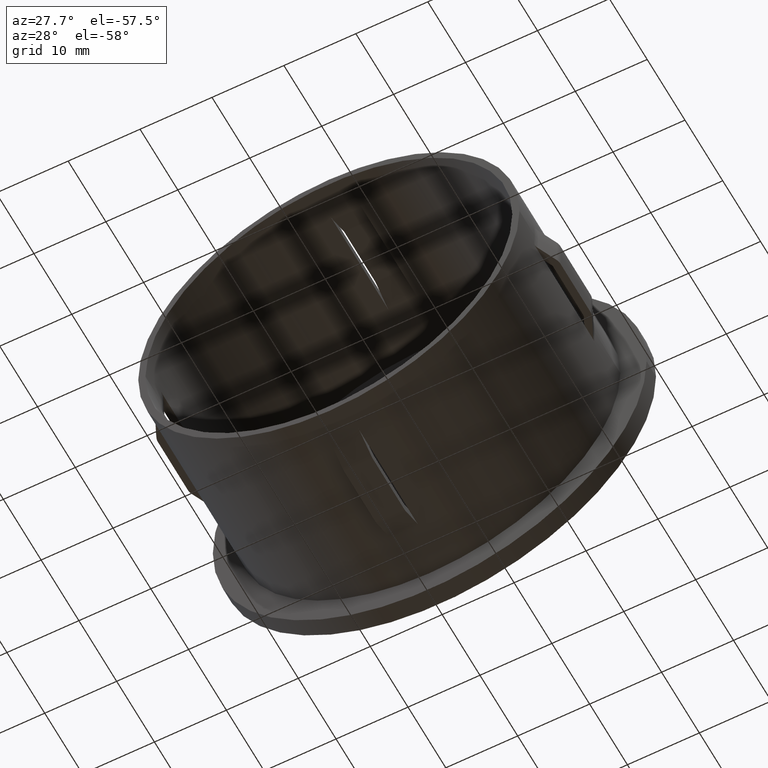
[diagram: clean part render]
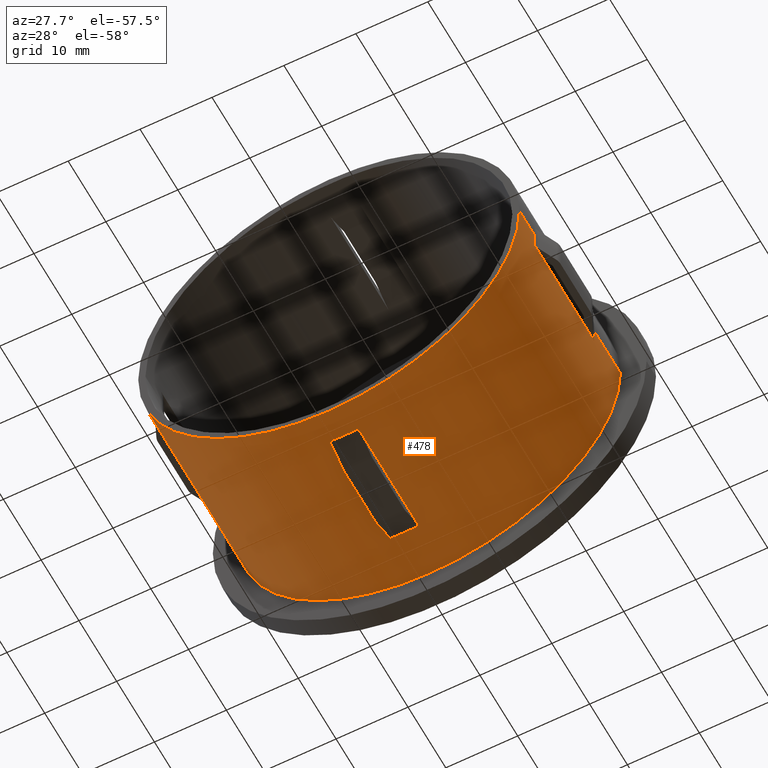
[diagram: same view with one face highlighted and labeled with its STEP entity id]
A machine part, auxiliary view. The second image highlights one B-rep face of the part: STEP entity #478.
In plain terms, the highlighted cylindrical surface (partial cylindrical patch) has radius 26.5 mm, axis along (-0, 1, -0).
Its self-contained STEP definition (entity closure, byte-faithful):
#87 = AXIS2_PLACEMENT_3D ( 'NONE', #3929, #11434, #8311 ) ;
#150 = VECTOR ( 'NONE', #4486, 1000.000000000000000 ) ;
#191 = CIRCLE ( 'NONE', #12779, 26.50000000000000400 ) ;
#299 = LINE ( 'NONE', #5694, #10020 ) ;
#375 = DIRECTION ( 'NONE',  ( 0.0000000000000000000, -1.000000000000000000, 0.0000000000000000000 ) ) ;
#473 = LINE ( 'NONE', #1264, #1155 ) ;
#478 = ADVANCED_FACE ( 'NONE', ( #4270, #14010 ), #1366, .T. ) ;
#480 = EDGE_CURVE ( 'NONE', #13676, #4939, #11116, .T. ) ;
#575 = CARTESIAN_POINT ( 'NONE',  ( -26.42442052344761900, 20.00000000000000000, -2.000000000000000000 ) ) ;
#675 = ORIENTED_EDGE ( 'NONE', *, *, #13631, .T. ) ;
#767 = VECTOR ( 'NONE', #12952, 1000.000000000000000 ) ;
#796 = EDGE_CURVE ( 'NONE', #11770, #13519, #13715, .T. ) ;
#987 = CARTESIAN_POINT ( 'NONE',  ( -26.50000000000000400, 29.19999999999999600, 0.0000000000000000000 ) ) ;
#1047 = DIRECTION ( 'NONE',  ( -1.000000000000000000, -1.309225264888156100E-016, 0.0000000000000000000 ) ) ;
#1155 = VECTOR ( 'NONE', #8975, 1000.000000000000000 ) ;
#1237 = DIRECTION ( 'NONE',  ( -1.224646799147353200E-016, 1.000000000000000000, -0.0000000000000000000 ) ) ;
#1251 = ORIENTED_EDGE ( 'NONE', *, *, #11007, .T. ) ;
#1254 = VECTOR ( 'NONE', #8012, 1000.000000000000000 ) ;
#1264 = CARTESIAN_POINT ( 'NONE',  ( -1.999999999999993600, 61.24134675736339500, -26.42442052344762300 ) ) ;
#1289 = EDGE_CURVE ( 'NONE', #4571, #5101, #5492, .T. ) ;
#1358 = ORIENTED_EDGE ( 'NONE', *, *, #8458, .F. ) ;
#1366 = CYLINDRICAL_SURFACE ( 'NONE', #2618, 26.50000000000000400 ) ;
#1419 = VECTOR ( 'NONE', #6836, 1000.000000000000000 ) ;
#1532 = LINE ( 'NONE', #2716, #5443 ) ;
#1560 = DIRECTION ( 'NONE',  ( -1.000000000000000000, -1.309225264888156100E-016, 0.0000000000000000000 ) ) ;
#1796 = CARTESIAN_POINT ( 'NONE',  ( 2.963645253936595000E-015, 3.999999999999996400, 0.0000000000000000000 ) ) ;
#1870 = DIRECTION ( 'NONE',  ( -1.000000000000000000, -1.309225264888156400E-016, 0.0000000000000000000 ) ) ;
#1903 = ORIENTED_EDGE ( 'NONE', *, *, #7931, .F. ) ;
#2013 = CIRCLE ( 'NONE', #5541, 26.50000000000000000 ) ;
#2163 = CARTESIAN_POINT ( 'NONE',  ( -26.42442052344761900, 6.705341703911474700, -2.000000000000000000 ) ) ;
#2247 = VERTEX_POINT ( 'NONE', #5859 ) ;
#2269 = VERTEX_POINT ( 'NONE', #2485 ) ;
#2290 = CARTESIAN_POINT ( 'NONE',  ( -26.50000000000000000, 3.999999999999993300, 0.0000000000000000000 ) ) ;
#2295 = DIRECTION ( 'NONE',  ( -0.0000000000000000000, -1.000000000000000000, -0.0000000000000000000 ) ) ;
#2387 = EDGE_CURVE ( 'NONE', #3273, #4939, #1532, .T. ) ;
#2399 = ORIENTED_EDGE ( 'NONE', *, *, #3376, .T. ) ;
#2485 = CARTESIAN_POINT ( 'NONE',  ( 26.50000000000000000, 19.99999999999999600, 3.245314017740486200E-015 ) ) ;
#2592 = VERTEX_POINT ( 'NONE', #3315 ) ;
#2618 = AXIS2_PLACEMENT_3D ( 'NONE', #7632, #5544, #7747 ) ;
#2661 = AXIS2_PLACEMENT_3D ( 'NONE', #12387, #4687, #1560 ) ;
#2662 = EDGE_CURVE ( 'NONE', #7720, #7985, #11331, .T. ) ;
#2709 = DIRECTION ( 'NONE',  ( -1.224646799147353200E-016, 1.000000000000000000, -0.0000000000000000000 ) ) ;
#2713 = LINE ( 'NONE', #5220, #13110 ) ;
#2716 = CARTESIAN_POINT ( 'NONE',  ( -1.999999999999993600, 20.00000000000000000, -26.42442052344762300 ) ) ;
#2771 = CARTESIAN_POINT ( 'NONE',  ( 2.000000000000006200, 19.99999999999999300, -26.42442052344762300 ) ) ;
#3057 = VERTEX_POINT ( 'NONE', #12264 ) ;
#3138 = EDGE_CURVE ( 'NONE', #9046, #7862, #10616, .T. ) ;
#3189 = DIRECTION ( 'NONE',  ( -1.224646799147353200E-016, 1.000000000000000000, -0.0000000000000000000 ) ) ;
#3222 = ORIENTED_EDGE ( 'NONE', *, *, #1289, .F. ) ;
#3273 = VERTEX_POINT ( 'NONE', #11550 ) ;
#3296 = CARTESIAN_POINT ( 'NONE',  ( 26.50000000000000400, -2.241329342131284200E-016, 3.245314017740486600E-015 ) ) ;
#3315 = CARTESIAN_POINT ( 'NONE',  ( -26.42442052344761900, 20.00000000000000000, -2.000000000000000000 ) ) ;
#3376 = EDGE_CURVE ( 'NONE', #11770, #9585, #7367, .T. ) ;
#3392 = CARTESIAN_POINT ( 'NONE',  ( -26.49999999999999600, -6.714760969694099600E-015, 0.0000000000000000000 ) ) ;
#3547 = CARTESIAN_POINT ( 'NONE',  ( 26.42442052344762600, 20.00000000000000000, -2.000000000000000000 ) ) ;
#3575 = ORIENTED_EDGE ( 'NONE', *, *, #11474, .F. ) ;
#3738 = CIRCLE ( 'NONE', #3794, 26.50000000000000000 ) ;
#3794 = AXIS2_PLACEMENT_3D ( 'NONE', #11758, #11673, #1870 ) ;
#3918 = LINE ( 'NONE', #13217, #14161 ) ;
#3920 = VERTEX_POINT ( 'NONE', #13050 ) ;
#3929 = CARTESIAN_POINT ( 'NONE',  ( 3.453503973595536000E-015, -3.469446951953614200E-015, 0.0000000000000000000 ) ) ;
#4038 = ORIENTED_EDGE ( 'NONE', *, *, #12936, .F. ) ;
#4112 = CARTESIAN_POINT ( 'NONE',  ( -1.999999999999993600, 3.999999999999993300, -26.42442052344762300 ) ) ;
#4165 = DIRECTION ( 'NONE',  ( -0.0000000000000000000, -1.000000000000000000, -0.0000000000000000000 ) ) ;
#4209 = CIRCLE ( 'NONE', #2661, 26.50000000000000400 ) ;
#4261 = LINE ( 'NONE', #6139, #11605 ) ;
#4270 = FACE_OUTER_BOUND ( 'NONE', #13299, .T. ) ;
#4361 = AXIS2_PLACEMENT_3D ( 'NONE', #10013, #11000, #6637 ) ;
#4384 = DIRECTION ( 'NONE',  ( -0.0000000000000000000, -1.000000000000000000, -0.0000000000000000000 ) ) ;
#4486 = DIRECTION ( 'NONE',  ( -0.0000000000000000000, -1.000000000000000000, -0.0000000000000000000 ) ) ;
#4571 = VERTEX_POINT ( 'NONE', #2163 ) ;
#4659 = EDGE_CURVE ( 'NONE', #5101, #7862, #191, .T. ) ;
#4687 = DIRECTION ( 'NONE',  ( -1.224646799147353200E-016, 1.000000000000000000, -0.0000000000000000000 ) ) ;
#4799 = ORIENTED_EDGE ( 'NONE', *, *, #796, .F. ) ;
#4813 = ORIENTED_EDGE ( 'NONE', *, *, #13207, .T. ) ;
#4939 = VERTEX_POINT ( 'NONE', #4112 ) ;
#5101 = VERTEX_POINT ( 'NONE', #5293 ) ;
#5220 = CARTESIAN_POINT ( 'NONE',  ( -26.42442052344761900, 20.00000000000000000, -2.000000000000000000 ) ) ;
#5244 = DIRECTION ( 'NONE',  ( -1.000000000000000000, -1.309225264888156100E-016, 0.0000000000000000000 ) ) ;
#5293 = CARTESIAN_POINT ( 'NONE',  ( -26.42442052344761900, 3.999999999999989800, -2.000000000000000000 ) ) ;
#5298 = VERTEX_POINT ( 'NONE', #8965 ) ;
#5443 = VECTOR ( 'NONE', #4165, 1000.000000000000000 ) ;
#5463 = EDGE_CURVE ( 'NONE', #12021, #10592, #6294, .T. ) ;
#5487 = VECTOR ( 'NONE', #3189, 1000.000000000000000 ) ;
#5492 = LINE ( 'NONE', #575, #1254 ) ;
#5541 = AXIS2_PLACEMENT_3D ( 'NONE', #13696, #11547, #7133 ) ;
#5544 = DIRECTION ( 'NONE',  ( -1.224646799147353200E-016, 1.000000000000000000, -0.0000000000000000000 ) ) ;
#5673 = EDGE_CURVE ( 'NONE', #9255, #7985, #12934, .T. ) ;
#5694 = CARTESIAN_POINT ( 'NONE',  ( 2.000000000000006200, 61.24134675736339500, -26.42442052344762300 ) ) ;
#5726 = EDGE_CURVE ( 'NONE', #13519, #3920, #299, .T. ) ;
#5859 = CARTESIAN_POINT ( 'NONE',  ( -1.999999999999993600, 17.29465829608851000, -26.42442052344762300 ) ) ;
#5925 = VECTOR ( 'NONE', #1237, 1000.000000000000000 ) ;
#6139 = CARTESIAN_POINT ( 'NONE',  ( 26.50000000000000400, 29.20000000000000300, 3.245314017740486600E-015 ) ) ;
#6187 = EDGE_CURVE ( 'NONE', #2247, #3273, #473, .T. ) ;
#6235 = VECTOR ( 'NONE', #2709, 1000.000000000000000 ) ;
#6257 = EDGE_CURVE ( 'NONE', #13084, #9046, #8004, .T. ) ;
#6266 = CARTESIAN_POINT ( 'NONE',  ( 26.50000000000000000, 26.70000000000000300, 3.245314017740486200E-015 ) ) ;
#6294 = LINE ( 'NONE', #12698, #12462 ) ;
#6382 = CARTESIAN_POINT ( 'NONE',  ( 1.004210375300830500E-015, 19.99999999999999300, 0.0000000000000000000 ) ) ;
#6386 = DIRECTION ( 'NONE',  ( -0.0000000000000000000, -1.000000000000000000, -0.0000000000000000000 ) ) ;
#6590 = LINE ( 'NONE', #3547, #767 ) ;
#6625 = CARTESIAN_POINT ( 'NONE',  ( 26.42442052344762600, 20.00000000000000000, -2.000000000000000000 ) ) ;
#6637 = DIRECTION ( 'NONE',  ( -1.000000000000000000, -1.309225264888156400E-016, 0.0000000000000000000 ) ) ;
#6804 = DIRECTION ( 'NONE',  ( 0.0000000000000000000, -1.000000000000000000, 0.0000000000000000000 ) ) ;
#6836 = DIRECTION ( 'NONE',  ( -0.0000000000000000000, -1.000000000000000000, -0.0000000000000000000 ) ) ;
#7056 = ORIENTED_EDGE ( 'NONE', *, *, #4659, .F. ) ;
#7133 = DIRECTION ( 'NONE',  ( -1.000000000000000000, -1.309225264888156400E-016, 0.0000000000000000000 ) ) ;
#7367 = CIRCLE ( 'NONE', #13417, 26.50000000000000000 ) ;
#7468 = CARTESIAN_POINT ( 'NONE',  ( -26.50000000000000000, 26.69999999999999600, 0.0000000000000000000 ) ) ;
#7598 = EDGE_CURVE ( 'NONE', #2269, #11741, #2013, .T. ) ;
#7632 = CARTESIAN_POINT ( 'NONE',  ( -1.224646799147354400E-016, 29.19999999999999900, 0.0000000000000000000 ) ) ;
#7673 = ORIENTED_EDGE ( 'NONE', *, *, #7598, .T. ) ;
#7720 = VERTEX_POINT ( 'NONE', #6266 ) ;
#7747 = DIRECTION ( 'NONE',  ( -1.000000000000000000, -1.309225264888156100E-016, 0.0000000000000000000 ) ) ;
#7774 = CARTESIAN_POINT ( 'NONE',  ( -26.50000000000000400, 29.19999999999999600, 0.0000000000000000000 ) ) ;
#7862 = VERTEX_POINT ( 'NONE', #2290 ) ;
#7886 = CARTESIAN_POINT ( 'NONE',  ( 2.000000000000006200, 20.00000000000000000, -26.42442052344762300 ) ) ;
#7931 = EDGE_CURVE ( 'NONE', #11831, #3057, #4209, .T. ) ;
#7985 = VERTEX_POINT ( 'NONE', #7468 ) ;
#8004 = CIRCLE ( 'NONE', #87, 26.50000000000000000 ) ;
#8012 = DIRECTION ( 'NONE',  ( -0.0000000000000000000, -1.000000000000000000, -0.0000000000000000000 ) ) ;
#8144 = CARTESIAN_POINT ( 'NONE',  ( 26.42442052344762600, 17.29465829608851000, -2.000000000000000000 ) ) ;
#8255 = CARTESIAN_POINT ( 'NONE',  ( -1.999999999999993600, 20.00000000000000000, -26.42442052344762300 ) ) ;
#8311 = DIRECTION ( 'NONE',  ( -1.000000000000000000, -1.224646799147353200E-016, 0.0000000000000000000 ) ) ;
#8343 = ORIENTED_EDGE ( 'NONE', *, *, #6187, .T. ) ;
#8458 = EDGE_CURVE ( 'NONE', #5298, #4571, #11052, .T. ) ;
#8474 = CARTESIAN_POINT ( 'NONE',  ( 2.000000000000006200, 20.00000000000000000, -26.42442052344762300 ) ) ;
#8542 = VECTOR ( 'NONE', #4384, 1000.000000000000000 ) ;
#8832 = VECTOR ( 'NONE', #6804, 1000.000000000000000 ) ;
#8919 = CARTESIAN_POINT ( 'NONE',  ( 26.42442052344762600, 20.00000000000000000, -2.000000000000000000 ) ) ;
#8965 = CARTESIAN_POINT ( 'NONE',  ( -26.42442052344761900, 17.29465829608851400, -2.000000000000000000 ) ) ;
#8975 = DIRECTION ( 'NONE',  ( 0.0000000000000000000, -1.000000000000000000, 0.0000000000000000000 ) ) ;
#9046 = VERTEX_POINT ( 'NONE', #3392 ) ;
#9056 = ORIENTED_EDGE ( 'NONE', *, *, #3138, .T. ) ;
#9255 = VERTEX_POINT ( 'NONE', #12532 ) ;
#9452 = CARTESIAN_POINT ( 'NONE',  ( 2.000000000000006200, 17.29465829608851400, -26.42442052344762300 ) ) ;
#9585 = VERTEX_POINT ( 'NONE', #8255 ) ;
#9708 = LINE ( 'NONE', #6625, #150 ) ;
#9729 = CARTESIAN_POINT ( 'NONE',  ( 2.963645253936595000E-015, 3.999999999999996400, 0.0000000000000000000 ) ) ;
#9809 = EDGE_CURVE ( 'NONE', #10592, #3057, #6590, .T. ) ;
#10013 = CARTESIAN_POINT ( 'NONE',  ( 1.836970198721030900E-016, 26.69999999999999900, 0.0000000000000000000 ) ) ;
#10020 = VECTOR ( 'NONE', #375, 1000.000000000000000 ) ;
#10030 = ORIENTED_EDGE ( 'NONE', *, *, #5463, .T. ) ;
#10094 = AXIS2_PLACEMENT_3D ( 'NONE', #9729, #10930, #1047 ) ;
#10258 = ORIENTED_EDGE ( 'NONE', *, *, #5726, .F. ) ;
#10332 = CARTESIAN_POINT ( 'NONE',  ( 26.50000000000001100, 4.000000000000000000, 3.245314017740487300E-015 ) ) ;
#10440 = ORIENTED_EDGE ( 'NONE', *, *, #2662, .F. ) ;
#10558 = LINE ( 'NONE', #7886, #8542 ) ;
#10565 = DIRECTION ( 'NONE',  ( -1.000000000000000000, -1.309225264888156400E-016, 0.0000000000000000000 ) ) ;
#10592 = VERTEX_POINT ( 'NONE', #13911 ) ;
#10602 = ORIENTED_EDGE ( 'NONE', *, *, #480, .F. ) ;
#10616 = LINE ( 'NONE', #987, #5487 ) ;
#10776 = DIRECTION ( 'NONE',  ( -1.224646799147353200E-016, 1.000000000000000000, -0.0000000000000000000 ) ) ;
#10930 = DIRECTION ( 'NONE',  ( -1.224646799147353200E-016, 1.000000000000000000, -0.0000000000000000000 ) ) ;
#11000 = DIRECTION ( 'NONE',  ( -1.224646799147353200E-016, 1.000000000000000000, -0.0000000000000000000 ) ) ;
#11007 = EDGE_CURVE ( 'NONE', #2592, #9255, #3738, .T. ) ;
#11052 = LINE ( 'NONE', #13941, #8832 ) ;
#11116 = CIRCLE ( 'NONE', #10094, 26.50000000000000400 ) ;
#11331 = CIRCLE ( 'NONE', #4361, 26.50000000000000000 ) ;
#11434 = DIRECTION ( 'NONE',  ( -1.224646799147353200E-016, 1.000000000000000000, -0.0000000000000000000 ) ) ;
#11473 = ORIENTED_EDGE ( 'NONE', *, *, #12622, .F. ) ;
#11474 = EDGE_CURVE ( 'NONE', #2592, #5298, #2713, .T. ) ;
#11547 = DIRECTION ( 'NONE',  ( -1.224646799147353200E-016, 1.000000000000000000, -0.0000000000000000000 ) ) ;
#11550 = CARTESIAN_POINT ( 'NONE',  ( -1.999999999999993600, 6.705341703911476400, -26.42442052344762300 ) ) ;
#11605 = VECTOR ( 'NONE', #12696, 1000.000000000000000 ) ;
#11623 = DIRECTION ( 'NONE',  ( -1.224646799147353200E-016, 1.000000000000000000, -0.0000000000000000000 ) ) ;
#11673 = DIRECTION ( 'NONE',  ( -1.224646799147353200E-016, 1.000000000000000000, -0.0000000000000000000 ) ) ;
#11741 = VERTEX_POINT ( 'NONE', #8919 ) ;
#11758 = CARTESIAN_POINT ( 'NONE',  ( 1.004210375300830500E-015, 19.99999999999999300, 0.0000000000000000000 ) ) ;
#11770 = VERTEX_POINT ( 'NONE', #2771 ) ;
#11831 = VERTEX_POINT ( 'NONE', #10332 ) ;
#11836 = EDGE_CURVE ( 'NONE', #2269, #7720, #13753, .T. ) ;
#12021 = VERTEX_POINT ( 'NONE', #8144 ) ;
#12162 = ORIENTED_EDGE ( 'NONE', *, *, #9809, .T. ) ;
#12264 = CARTESIAN_POINT ( 'NONE',  ( 26.42442052344762600, 3.999999999999989800, -2.000000000000000000 ) ) ;
#12387 = CARTESIAN_POINT ( 'NONE',  ( 2.963645253936595000E-015, 3.999999999999996400, 0.0000000000000000000 ) ) ;
#12444 = CARTESIAN_POINT ( 'NONE',  ( 26.50000000000000400, 29.20000000000000300, 3.245314017740486600E-015 ) ) ;
#12462 = VECTOR ( 'NONE', #12774, 1000.000000000000000 ) ;
#12532 = CARTESIAN_POINT ( 'NONE',  ( -26.50000000000000000, 19.99999999999998900, 0.0000000000000000000 ) ) ;
#12622 = EDGE_CURVE ( 'NONE', #3920, #13676, #10558, .T. ) ;
#12696 = DIRECTION ( 'NONE',  ( -1.224646799147353200E-016, 1.000000000000000000, -0.0000000000000000000 ) ) ;
#12698 = CARTESIAN_POINT ( 'NONE',  ( 26.42442052344762600, 61.24134675736339500, -2.000000000000000000 ) ) ;
#12774 = DIRECTION ( 'NONE',  ( 0.0000000000000000000, -1.000000000000000000, 0.0000000000000000000 ) ) ;
#12779 = AXIS2_PLACEMENT_3D ( 'NONE', #1796, #11623, #5244 ) ;
#12851 = EDGE_LOOP ( 'NONE', ( #4799, #2399, #4813, #8343, #13168, #10602, #11473, #10258 ) ) ;
#12934 = LINE ( 'NONE', #7774, #5925 ) ;
#12936 = EDGE_CURVE ( 'NONE', #13084, #11831, #4261, .T. ) ;
#12952 = DIRECTION ( 'NONE',  ( -0.0000000000000000000, -1.000000000000000000, -0.0000000000000000000 ) ) ;
#12969 = ORIENTED_EDGE ( 'NONE', *, *, #11836, .F. ) ;
#12999 = ORIENTED_EDGE ( 'NONE', *, *, #6257, .T. ) ;
#13050 = CARTESIAN_POINT ( 'NONE',  ( 2.000000000000006200, 6.705341703911474700, -26.42442052344762300 ) ) ;
#13084 = VERTEX_POINT ( 'NONE', #3296 ) ;
#13110 = VECTOR ( 'NONE', #6386, 1000.000000000000000 ) ;
#13168 = ORIENTED_EDGE ( 'NONE', *, *, #2387, .T. ) ;
#13207 = EDGE_CURVE ( 'NONE', #9585, #2247, #3918, .T. ) ;
#13217 = CARTESIAN_POINT ( 'NONE',  ( -1.999999999999993600, 20.00000000000000000, -26.42442052344762300 ) ) ;
#13225 = CARTESIAN_POINT ( 'NONE',  ( 2.000000000000006200, 3.999999999999993300, -26.42442052344762300 ) ) ;
#13299 = EDGE_LOOP ( 'NONE', ( #4038, #12999, #9056, #7056, #3222, #1358, #3575, #1251, #13306, #10440, #12969, #7673, #675, #10030, #12162, #1903 ) ) ;
#13306 = ORIENTED_EDGE ( 'NONE', *, *, #5673, .T. ) ;
#13417 = AXIS2_PLACEMENT_3D ( 'NONE', #6382, #10776, #10565 ) ;
#13519 = VERTEX_POINT ( 'NONE', #9452 ) ;
#13631 = EDGE_CURVE ( 'NONE', #11741, #12021, #9708, .T. ) ;
#13676 = VERTEX_POINT ( 'NONE', #13225 ) ;
#13696 = CARTESIAN_POINT ( 'NONE',  ( 1.004210375300830500E-015, 19.99999999999999300, 0.0000000000000000000 ) ) ;
#13715 = LINE ( 'NONE', #8474, #1419 ) ;
#13753 = LINE ( 'NONE', #12444, #6235 ) ;
#13911 = CARTESIAN_POINT ( 'NONE',  ( 26.42442052344762600, 6.705341703911479100, -2.000000000000000000 ) ) ;
#13941 = CARTESIAN_POINT ( 'NONE',  ( -26.42442052344761900, 61.24134675736339500, -2.000000000000000000 ) ) ;
#14010 = FACE_BOUND ( 'NONE', #12851, .T. ) ;
#14161 = VECTOR ( 'NONE', #2295, 1000.000000000000000 ) ;